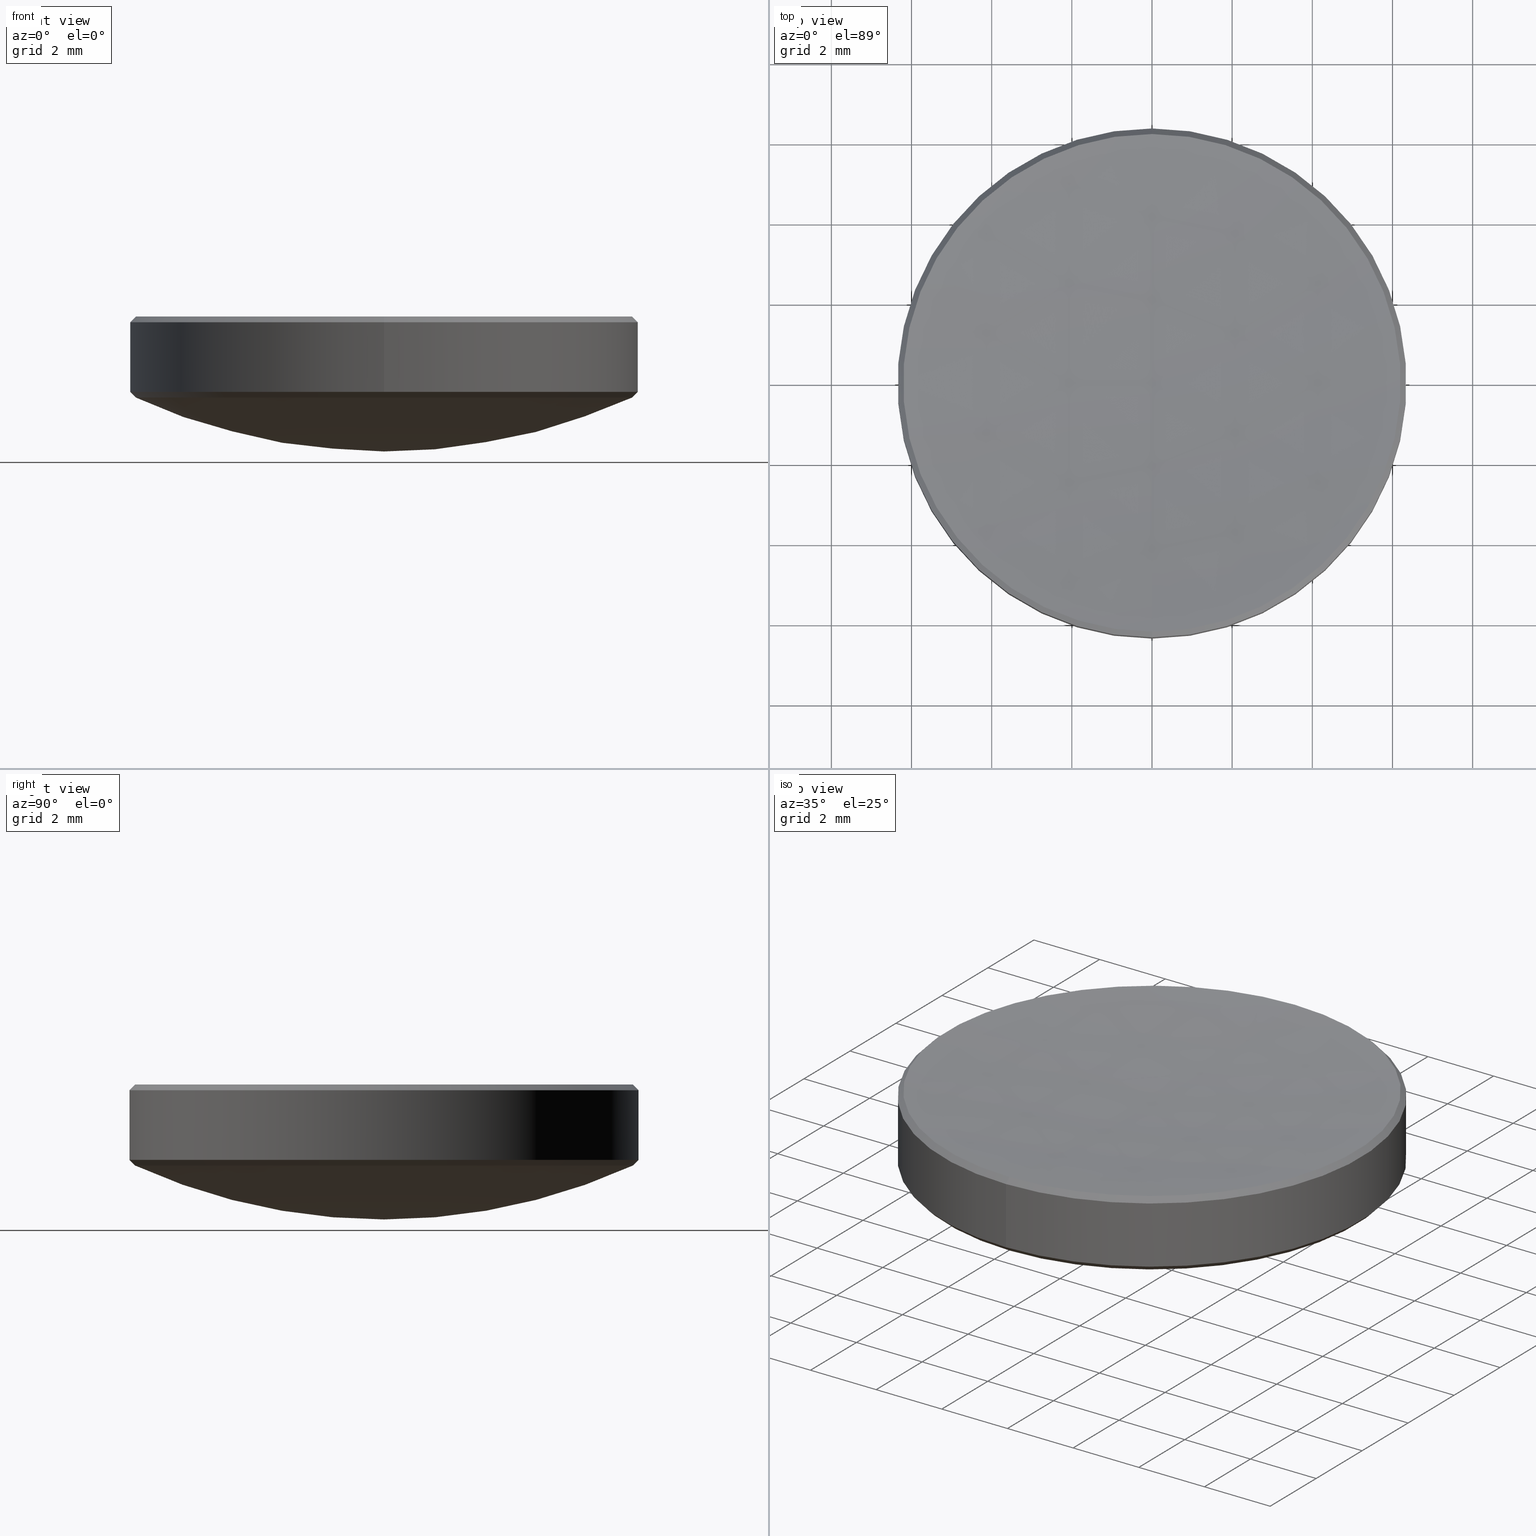
[diagram: canonical four-view strip — front | top / right | iso, engineering-drawing reading convention]
A machine part, canonical four-view strip (front | top / right | iso — engineering-drawing reading convention). The complete STEP part file that produces these views, byte-faithful:
ISO-10303-21;
HEADER;
FILE_DESCRIPTION (( 'STEP AP203' ),
    '1' );
FILE_NAME ('21984-E0W.STEP',
    '2018-06-01T18:06:17',
    ( 'admin' ),
    ( '' ),
    'SwSTEP 2.0',
    'SolidWorks 2016',
    '' );
FILE_SCHEMA (( 'CONFIG_CONTROL_DESIGN' ));
ENDSEC;

DATA;
#1 = CALENDAR_DATE ( 2018, 1, 6 ) ;
#2 = CARTESIAN_POINT ( 'NONE',  ( 0.0000000000000000000, -0.2444322300693973200, -0.01364043630470037100 ) ) ;
#3 = EDGE_CURVE ( 'NONE', #327, #126, #259, .T. ) ;
#4 = ADVANCED_FACE ( 'NONE', ( #202 ), #42, .T. ) ;
#5 = CARTESIAN_POINT ( 'NONE',  ( 0.0000000000000000000, 0.0000000000000000000, 0.05150915296063259000 ) ) ;
#6 = DIRECTION ( 'NONE',  ( 0.0000000000000000000, -1.000000000000000000, -1.835460370743176800E-016 ) ) ;
#7 = CARTESIAN_POINT ( 'NONE',  ( 0.0000000000000000000, 0.0000000000000000000, 0.0000000000000000000 ) ) ;
#8 = ORIENTED_EDGE ( 'NONE', *, *, #123, .F. ) ;
#9 = ADVANCED_FACE ( 'NONE', ( #49 ), #46, .T. ) ;
#10 = PERSON_AND_ORGANIZATION ( #213, #269 ) ;
#11 = CARTESIAN_POINT ( 'NONE',  ( 3.061616997868383000E-017, -0.2500000000000000000, 0.06036624826491244300 ) ) ;
#12 = APPROVAL ( #111, 'UNSPECIFIED' ) ;
#13 = DIRECTION ( 'NONE',  ( 8.659560562354985900E-017, -0.7071067811865516800, -0.7071067811865431300 ) ) ;
#14 = PERSON_AND_ORGANIZATION_ROLE ( 'classification_officer' ) ;
#15 = FACE_OUTER_BOUND ( 'NONE', #54, .T. ) ;
#16 = AXIS2_PLACEMENT_3D ( 'NONE', #175, #44, #191 ) ;
#17 = VERTEX_POINT ( 'NONE', #20 ) ;
#18 = COORDINATED_UNIVERSAL_TIME_OFFSET ( 5, 0, .BEHIND. ) ;
#19 = EDGE_CURVE ( 'NONE', #325, #327, #24, .T. ) ;
#20 = CARTESIAN_POINT ( 'NONE',  ( 2.993431481629367800E-017, 0.2444322300693973800, -0.01364043630470025500 ) ) ;
#21 = LOCAL_TIME ( 14, 6, 17.00000000000000000, #232 ) ;
#22 = CARTESIAN_POINT ( 'NONE',  ( 0.0000000000000000000, -2.649717242950314800E-018, 0.06593401819551519800 ) ) ;
#23 = CC_DESIGN_APPROVAL ( #12, ( #326 ) ) ;
#24 = CIRCLE ( 'NONE', #200, 0.2500000000000000000 ) ;
#25 = DIRECTION ( 'NONE',  ( -0.0000000000000000000, -1.836909530733566100E-016, 1.000000000000000000 ) ) ;
#26 = CARTESIAN_POINT ( 'NONE',  ( 0.0000000000000000000, 1.196739014448673000E-017, -0.01364043630470035400 ) ) ;
#27 = DIRECTION ( 'NONE',  ( 1.000000000000000000, 0.0000000000000000000, 0.0000000000000000000 ) ) ;
#28 = ADVANCED_FACE ( 'NONE', ( #15 ), #127, .F. ) ;
#29 = CALENDAR_DATE ( 2018, 1, 6 ) ;
#30 = CIRCLE ( 'NONE', #315, 0.2500000000000000000 ) ;
#31 = AXIS2_PLACEMENT_3D ( 'NONE', #309, #178, #176 ) ;
#32 = CARTESIAN_POINT ( 'NONE',  ( 2.993431481629368400E-017, 0.2444322300693973200, -0.01364043630470030900 ) ) ;
#33 = ADVANCED_FACE ( 'NONE', ( #190 ), #153, .T. ) ;
#34 = EDGE_LOOP ( 'NONE', ( #66, #254, #173 ) ) ;
#35 = ORIENTED_EDGE ( 'NONE', *, *, #89, .F. ) ;
#36 = APPROVAL_STATUS ( 'not_yet_approved' ) ;
#37 = EDGE_CURVE ( 'NONE', #17, #217, #183, .T. ) ;
#38 = CARTESIAN_POINT ( 'NONE',  ( 0.0000000000000000000, 0.2500000000000000000, 0.06036624826491252700 ) ) ;
#39 = ORIENTED_EDGE ( 'NONE', *, *, #37, .T. ) ;
#40 = UNCERTAINTY_MEASURE_WITH_UNIT (LENGTH_MEASURE( 1.000000000000000100E-005 ), #160, 'distance_accuracy_value', 'NONE');
#41 = CC_DESIGN_PERSON_AND_ORGANIZATION_ASSIGNMENT ( #76, #99, ( #326 ) ) ;
#42 = CONICAL_SURFACE ( 'NONE', #162, 0.2500000000000000000, 0.7853981633974545000 ) ;
#43 = CLOSED_SHELL ( 'NONE', ( #4, #33, #9, #205, #266, #28, #82, #108, #317, #148 ) ) ;
#44 = DIRECTION ( 'NONE',  ( -0.0000000000000000000, -1.836909530733566100E-016, 1.000000000000000000 ) ) ;
#45 = APPROVAL_DATE_TIME ( #247, #12 ) ;
#46 = CONICAL_SURFACE ( 'NONE', #179, 0.2444322300693973200, 0.7853981633974482800 ) ;
#47 = AXIS2_PLACEMENT_3D ( 'NONE', #305, #168, #221 ) ;
#48 = CARTESIAN_POINT ( 'NONE',  ( 3.061616997868383000E-017, 0.2500000000000000000, 0.05150915296063263100 ) ) ;
#49 = FACE_OUTER_BOUND ( 'NONE', #304, .T. ) ;
#50 = DIRECTION ( 'NONE',  ( -1.224646799147353200E-016, -1.000000000000000000, 0.0000000000000000000 ) ) ;
#51 = DATE_AND_TIME ( #29, #21 ) ;
#52 = FACE_OUTER_BOUND ( 'NONE', #34, .T. ) ;
#53 = EDGE_CURVE ( 'NONE', #212, #71, #306, .T. ) ;
#54 = EDGE_LOOP ( 'NONE', ( #301, #276, #277 ) ) ;
#55 = DIRECTION ( 'NONE',  ( -1.000000000000000000, 0.0000000000000000000, 0.0000000000000000000 ) ) ;
#56 = CARTESIAN_POINT ( 'NONE',  ( 0.0000000000000000000, 0.0000000000000000000, 0.5239500978425223300 ) ) ;
#57 = CARTESIAN_POINT ( 'NONE',  ( 0.0000000000000000000, -1.626968277904726200E-018, 0.06036624826491248500 ) ) ;
#58 = EDGE_LOOP ( 'NONE', ( #91, #281, #170 ) ) ;
#59 = CC_DESIGN_DATE_AND_TIME_ASSIGNMENT ( #234, #143, ( #326 ) ) ;
#60 = DIRECTION ( 'NONE',  ( 0.0000000000000000000, -1.000000000000000000, -1.707404996040164500E-016 ) ) ;
#61 = ORIENTED_EDGE ( 'NONE', *, *, #138, .F. ) ;
#62 = ORIENTED_EDGE ( 'NONE', *, *, #320, .F. ) ;
#63 = DIRECTION ( 'NONE',  ( -0.0000000000000000000, -1.836909530733566100E-016, 1.000000000000000000 ) ) ;
#64 = AXIS2_PLACEMENT_3D ( 'NONE', #22, #65, #250 ) ;
#65 = DIRECTION ( 'NONE',  ( -0.0000000000000000000, -1.836909530733566100E-016, 1.000000000000000000 ) ) ;
#66 = ORIENTED_EDGE ( 'NONE', *, *, #72, .F. ) ;
#67 = APPLICATION_CONTEXT ( 'configuration controlled 3d designs of mechanical parts and assemblies' ) ;
#68 = ORIENTED_EDGE ( 'NONE', *, *, #120, .F. ) ;
#69 = ORIENTED_EDGE ( 'NONE', *, *, #120, .T. ) ;
#70 = DIRECTION ( 'NONE',  ( 0.0000000000000000000, 1.000000000000000000, 1.314533001914755700E-016 ) ) ;
#71 = VERTEX_POINT ( 'NONE', #117 ) ;
#72 = EDGE_CURVE ( 'NONE', #208, #17, #155, .T. ) ;
#73 = DIRECTION ( 'NONE',  ( 0.0000000000000000000, -1.000000000000000000, -1.833611759518356000E-016 ) ) ;
#74 = DIRECTION ( 'NONE',  ( 0.0000000000000000000, -0.7071067811865475700, 0.7071067811865474600 ) ) ;
#75 = COORDINATED_UNIVERSAL_TIME_OFFSET ( 5, 0, .BEHIND. ) ;
#76 = PERSON_AND_ORGANIZATION ( #213, #269 ) ;
#77 = DIRECTION ( 'NONE',  ( -1.000000000000000000, 1.224646799147353200E-016, 2.249565377136128300E-032 ) ) ;
#78 = LOCAL_TIME ( 14, 6, 17.00000000000000000, #196 ) ;
#79 = PRODUCT_DEFINITION_FORMATION_WITH_SPECIFIED_SOURCE ( 'ANY', '', #289, .NOT_KNOWN. ) ;
#80 = LOCAL_TIME ( 14, 6, 17.00000000000000000, #75 ) ;
#81 = CARTESIAN_POINT ( 'NONE',  ( 0.0000000000000000000, 1.094464117944115000E-017, -0.008072666374097677400 ) ) ;
#82 = ADVANCED_FACE ( 'NONE', ( #52 ), #144, .T. ) ;
#83 = ORIENTED_EDGE ( 'NONE', *, *, #151, .F. ) ;
#84 = CALENDAR_DATE ( 2018, 1, 6 ) ;
#85 = AXIS2_PLACEMENT_3D ( 'NONE', #198, #194, #180 ) ;
#86 = MECHANICAL_CONTEXT ( 'NONE', #311, 'mechanical' ) ;
#87 = VECTOR ( 'NONE', #106, 39.37007874015748100 ) ;
#88 = SECURITY_CLASSIFICATION_LEVEL ( 'unclassified' ) ;
#89 = EDGE_CURVE ( 'NONE', #217, #325, #158, .T. ) ;
#90 = DIRECTION ( 'NONE',  ( 1.224646799147353200E-016, 1.000000000000000000, 0.0000000000000000000 ) ) ;
#91 = ORIENTED_EDGE ( 'NONE', *, *, #210, .F. ) ;
#92 = APPROVAL ( #36, 'UNSPECIFIED' ) ;
#93 = PERSON_AND_ORGANIZATION ( #213, #269 ) ;
#94 = VECTOR ( 'NONE', #166, 39.37007874015748100 ) ;
#95 = SPHERICAL_SURFACE ( 'NONE', #96, 0.5905511811023621500 ) ;
#96 = AXIS2_PLACEMENT_3D ( 'NONE', #56, #150, #286 ) ;
#97 = FACE_OUTER_BOUND ( 'NONE', #225, .T. ) ;
#98 = CIRCLE ( 'NONE', #116, 2.078188976377952600 ) ;
#99 = PERSON_AND_ORGANIZATION_ROLE ( 'creator' ) ;
#100 = ORIENTED_EDGE ( 'NONE', *, *, #103, .T. ) ;
#101 = CARTESIAN_POINT ( 'NONE',  ( 0.0000000000000000000, 0.0000000000000000000, 2.129698129338585000 ) ) ;
#102 = DIRECTION ( 'NONE',  ( 0.0000000000000000000, -1.000000000000000000, -1.707404996040164500E-016 ) ) ;
#103 = EDGE_CURVE ( 'NONE', #270, #126, #30, .T. ) ;
#104 = DIRECTION ( 'NONE',  ( 1.000000000000000000, 0.0000000000000000000, 0.0000000000000000000 ) ) ;
#105 = SPHERICAL_SURFACE ( 'NONE', #147, 2.078188976377952600 ) ;
#106 = DIRECTION ( 'NONE',  ( -0.0000000000000000000, -1.836909530733566100E-016, 1.000000000000000000 ) ) ;
#107 = APPROVAL_STATUS ( 'not_yet_approved' ) ;
#108 = ADVANCED_FACE ( 'NONE', ( #248 ), #181, .T. ) ;
#109 = CC_DESIGN_APPROVAL ( #92, ( #79 ) ) ;
#110 = CARTESIAN_POINT ( 'NONE',  ( 0.0000000000000000000, -0.2444322300693973200, -0.01364043630470039900 ) ) ;
#111 = APPROVAL_STATUS ( 'not_yet_approved' ) ;
#112 = PERSON_AND_ORGANIZATION ( #213, #269 ) ;
#113 = CIRCLE ( 'NONE', #64, 0.2444322300693972100 ) ;
#114 = ORIENTED_EDGE ( 'NONE', *, *, #265, .T. ) ;
#115 = DIRECTION ( 'NONE',  ( 0.0000000000000000000, -1.000000000000000000, -1.833611759518356000E-016 ) ) ;
#116 = AXIS2_PLACEMENT_3D ( 'NONE', #101, #77, #50 ) ;
#117 = CARTESIAN_POINT ( 'NONE',  ( -2.993431481629359100E-017, -0.2444322300693961800, 0.06593401819551519800 ) ) ;
#118 = CONICAL_SURFACE ( 'NONE', #47, 0.2500000000000000000, 0.7853981633974545000 ) ;
#119 = CARTESIAN_POINT ( 'NONE',  ( 0.0000000000000000000, -1.626968277904726200E-018, 0.06036624826491248500 ) ) ;
#120 = EDGE_CURVE ( 'NONE', #71, #270, #134, .T. ) ;
#121 = APPROVAL_ROLE ( '' ) ;
#122 = LINE ( 'NONE', #38, #218 ) ;
#123 = EDGE_CURVE ( 'NONE', #327, #325, #152, .T. ) ;
#124 = MANIFOLD_SOLID_BREP ( '21984-001-1-solid1', #43 ) ;
#125 = ORIENTED_EDGE ( 'NONE', *, *, #320, .T. ) ;
#126 = VERTEX_POINT ( 'NONE', #229 ) ;
#127 = SPHERICAL_SURFACE ( 'NONE', #239, 2.078188976377952600 ) ;
#128 = CC_DESIGN_PERSON_AND_ORGANIZATION_ASSIGNMENT ( #177, #235, ( #79 ) ) ;
#129 = VECTOR ( 'NONE', #13, 39.37007874015748900 ) ;
#130 = EDGE_LOOP ( 'NONE', ( #68, #186, #114, #125 ) ) ;
#131 = DIRECTION ( 'NONE',  ( -0.0000000000000000000, -1.836909530733566100E-016, 1.000000000000000000 ) ) ;
#132 = APPROVAL_DATE_TIME ( #51, #92 ) ;
#133 = CARTESIAN_POINT ( 'NONE',  ( 0.0000000000000000000, -0.2500000000000000000, -0.008072666374097724200 ) ) ;
#134 = LINE ( 'NONE', #11, #129 ) ;
#135 = AXIS2_PLACEMENT_3D ( 'NONE', #262, #288, #256 ) ;
#136 = ORIENTED_EDGE ( 'NONE', *, *, #103, .F. ) ;
#137 = DIRECTION ( 'NONE',  ( 0.0000000000000000000, -1.000000000000000000, -1.746296913827006200E-016 ) ) ;
#138 = EDGE_CURVE ( 'NONE', #17, #327, #139, .T. ) ;
#139 = LINE ( 'NONE', #32, #94 ) ;
#140 = FACE_OUTER_BOUND ( 'NONE', #130, .T. ) ;
#141 = CC_DESIGN_PERSON_AND_ORGANIZATION_ASSIGNMENT ( #112, #267, ( #79 ) ) ;
#142 = CARTESIAN_POINT ( 'NONE',  ( 0.0000000000000000000, 0.0000000000000000000, 0.05150915296063259000 ) ) ;
#143 = DATE_TIME_ROLE ( 'creation_date' ) ;
#144 = SPHERICAL_SURFACE ( 'NONE', #330, 0.5905511811023621500 ) ;
#145 = LINE ( 'NONE', #199, #87 ) ;
#146 = ORIENTED_EDGE ( 'NONE', *, *, #19, .T. ) ;
#147 = AXIS2_PLACEMENT_3D ( 'NONE', #271, #251, #70 ) ;
#148 = ADVANCED_FACE ( 'NONE', ( #140 ), #118, .T. ) ;
#149 = ORIENTED_EDGE ( 'NONE', *, *, #3, .F. ) ;
#150 = DIRECTION ( 'NONE',  ( 1.000000000000000000, 0.0000000000000000000, 0.0000000000000000000 ) ) ;
#151 = EDGE_CURVE ( 'NONE', #71, #212, #113, .T. ) ;
#152 = CIRCLE ( 'NONE', #31, 0.2500000000000000000 ) ;
#153 = CYLINDRICAL_SURFACE ( 'NONE', #275, 0.2500000000000000000 ) ;
#154 = SECURITY_CLASSIFICATION ( '', '', #88 ) ;
#155 = CIRCLE ( 'NONE', #296, 0.5905511811023621500 ) ;
#156 = AXIS2_PLACEMENT_3D ( 'NONE', #26, #211, #73 ) ;
#157 = PRODUCT_DEFINITION_SHAPE ( 'NONE', 'NONE',  #326 ) ;
#158 = LINE ( 'NONE', #110, #182 ) ;
#159 = CARTESIAN_POINT ( 'NONE',  ( 0.0000000000000000000, 0.0000000000000000000, 2.129698129338585000 ) ) ;
#160 =( CONVERSION_BASED_UNIT ( 'INCH', #195 ) LENGTH_UNIT ( ) NAMED_UNIT ( #268 ) );
#161 = CIRCLE ( 'NONE', #85, 2.078188976377952600 ) ;
#162 = AXIS2_PLACEMENT_3D ( 'NONE', #57, #215, #252 ) ;
#163 = DIRECTION ( 'NONE',  ( -0.0000000000000000000, -1.836909530733566100E-016, 1.000000000000000000 ) ) ;
#164 = DIRECTION ( 'NONE',  ( 0.0000000000000000000, 0.7071067811865520100, -0.7071067811865430200 ) ) ;
#165 = CC_DESIGN_PERSON_AND_ORGANIZATION_ASSIGNMENT ( #261, #14, ( #154 ) ) ;
#166 = DIRECTION ( 'NONE',  ( 8.659560562354931600E-017, 0.7071067811865473500, 0.7071067811865476800 ) ) ;
#167 = APPROVAL_PERSON_ORGANIZATION ( #319, #12, #204 ) ;
#168 = DIRECTION ( 'NONE',  ( 0.0000000000000000000, 1.836909530733566100E-016, -1.000000000000000000 ) ) ;
#169 = DATE_TIME_ROLE ( 'classification_date' ) ;
#170 = ORIENTED_EDGE ( 'NONE', *, *, #151, .T. ) ;
#171 =( GEOMETRIC_REPRESENTATION_CONTEXT ( 3 ) GLOBAL_UNCERTAINTY_ASSIGNED_CONTEXT ( ( #40 ) ) GLOBAL_UNIT_ASSIGNED_CONTEXT ( ( #160, #292, #258 ) ) REPRESENTATION_CONTEXT ( 'NONE', 'WORKASPACE' ) );
#172 = APPROVAL_PERSON_ORGANIZATION ( #10, #206, #193 ) ;
#173 = ORIENTED_EDGE ( 'NONE', *, *, #37, .F. ) ;
#174 = DIRECTION ( 'NONE',  ( 1.000000000000000000, -1.224646799147353200E-016, -2.249565377136128300E-032 ) ) ;
#175 = CARTESIAN_POINT ( 'NONE',  ( 0.0000000000000000000, 1.196739014448673000E-017, -0.01364043630470035400 ) ) ;
#176 = DIRECTION ( 'NONE',  ( 0.0000000000000000000, -1.000000000000000000, -1.835460370743176800E-016 ) ) ;
#177 = PERSON_AND_ORGANIZATION ( #213, #269 ) ;
#178 = DIRECTION ( 'NONE',  ( -0.0000000000000000000, -1.836909530733566100E-016, 1.000000000000000000 ) ) ;
#179 = AXIS2_PLACEMENT_3D ( 'NONE', #293, #25, #115 ) ;
#180 = DIRECTION ( 'NONE',  ( 0.0000000000000000000, 0.0000000000000000000, -1.000000000000000000 ) ) ;
#181 = CONICAL_SURFACE ( 'NONE', #16, 0.2444322300693973200, 0.7853981633974482800 ) ;
#182 = VECTOR ( 'NONE', #74, 39.37007874015748100 ) ;
#183 = CIRCLE ( 'NONE', #257, 0.2444322300693973200 ) ;
#184 = DIRECTION ( 'NONE',  ( 0.0000000000000000000, 0.0000000000000000000, 1.000000000000000000 ) ) ;
#185 = CC_DESIGN_DATE_AND_TIME_ASSIGNMENT ( #299, #169, ( #154 ) ) ;
#186 = ORIENTED_EDGE ( 'NONE', *, *, #53, .F. ) ;
#187 = COORDINATED_UNIVERSAL_TIME_OFFSET ( 5, 0, .BEHIND. ) ;
#188 = CARTESIAN_POINT ( 'NONE',  ( 0.0000000000000000000, -1.626968277904726200E-018, 0.06036624826491248500 ) ) ;
#189 = EDGE_LOOP ( 'NONE', ( #149, #284, #228, #62 ) ) ;
#190 = FACE_OUTER_BOUND ( 'NONE', #322, .T. ) ;
#191 = DIRECTION ( 'NONE',  ( 0.0000000000000000000, -1.000000000000000000, -1.833611759518356000E-016 ) ) ;
#192 = AXIS2_PLACEMENT_3D ( 'NONE', #188, #272, #60 ) ;
#193 = APPROVAL_ROLE ( '' ) ;
#194 = DIRECTION ( 'NONE',  ( 1.000000000000000000, 0.0000000000000000000, 0.0000000000000000000 ) ) ;
#195 = LENGTH_MEASURE_WITH_UNIT ( LENGTH_MEASURE( 0.02539999999999999900 ), #329 );
#196 = COORDINATED_UNIVERSAL_TIME_OFFSET ( 5, 0, .BEHIND. ) ;
#197 = PERSON_AND_ORGANIZATION_ROLE ( 'design_owner' ) ;
#198 = CARTESIAN_POINT ( 'NONE',  ( 0.0000000000000000000, 0.0000000000000000000, 2.129698129338585000 ) ) ;
#199 = CARTESIAN_POINT ( 'NONE',  ( 0.0000000000000000000, -0.2500000000000000000, 0.05150915296063254800 ) ) ;
#200 = AXIS2_PLACEMENT_3D ( 'NONE', #81, #163, #6 ) ;
#201 = CARTESIAN_POINT ( 'NONE',  ( 0.0000000000000000000, 0.2444322300693965700, 0.06593401819551524000 ) ) ;
#202 = FACE_OUTER_BOUND ( 'NONE', #321, .T. ) ;
#203 = ORIENTED_EDGE ( 'NONE', *, *, #302, .F. ) ;
#204 = APPROVAL_ROLE ( '' ) ;
#205 = ADVANCED_FACE ( 'NONE', ( #97 ), #95, .T. ) ;
#206 = APPROVAL ( #107, 'UNSPECIFIED' ) ;
#207 = CIRCLE ( 'NONE', #156, 0.2444322300693973200 ) ;
#208 = VERTEX_POINT ( 'NONE', #310 ) ;
#209 = DIRECTION ( 'NONE',  ( -0.0000000000000000000, -1.836909530733566100E-016, 1.000000000000000000 ) ) ;
#210 = EDGE_CURVE ( 'NONE', #312, #212, #161, .T. ) ;
#211 = DIRECTION ( 'NONE',  ( -0.0000000000000000000, -1.836909530733566100E-016, 1.000000000000000000 ) ) ;
#212 = VERTEX_POINT ( 'NONE', #201 ) ;
#213 = PERSON ( 'UNSPECIFIED', 'UNSPECIFIED', 'UNSPECIFIED', ('UNSPECIFIED'), ('UNSPECIFIED'), ('UNSPECIFIED') ) ;
#214 = AXIS2_PLACEMENT_3D ( 'NONE', #5, #131, #102 ) ;
#215 = DIRECTION ( 'NONE',  ( 0.0000000000000000000, 1.836909530733566100E-016, -1.000000000000000000 ) ) ;
#216 = DIRECTION ( 'NONE',  ( -0.0000000000000000000, -1.836909530733566100E-016, 1.000000000000000000 ) ) ;
#217 = VERTEX_POINT ( 'NONE', #2 ) ;
#218 = VECTOR ( 'NONE', #164, 39.37007874015748100 ) ;
#219 = APPLICATION_PROTOCOL_DEFINITION ( 'international standard', 'config_control_design', 1994, #311 ) ;
#220 = ORIENTED_EDGE ( 'NONE', *, *, #72, .T. ) ;
#221 = DIRECTION ( 'NONE',  ( 0.0000000000000000000, 1.000000000000000000, 1.707404996040164500E-016 ) ) ;
#222 = CALENDAR_DATE ( 2018, 1, 6 ) ;
#223 = AXIS2_PLACEMENT_3D ( 'NONE', #314, #274, #137 ) ;
#224 = CC_DESIGN_APPROVAL ( #206, ( #154 ) ) ;
#225 = EDGE_LOOP ( 'NONE', ( #253, #220, #203 ) ) ;
#226 = DIRECTION ( 'NONE',  ( 0.0000000000000000000, -1.000000000000000000, -1.707404996040164500E-016 ) ) ;
#227 = EDGE_CURVE ( 'NONE', #312, #71, #98, .T. ) ;
#228 = ORIENTED_EDGE ( 'NONE', *, *, #246, .T. ) ;
#229 = CARTESIAN_POINT ( 'NONE',  ( 3.061616997868383000E-017, 0.2500000000000000000, 0.06036624826491252700 ) ) ;
#230 = ORIENTED_EDGE ( 'NONE', *, *, #3, .T. ) ;
#231 = APPROVAL_PERSON_ORGANIZATION ( #233, #92, #121 ) ;
#232 = COORDINATED_UNIVERSAL_TIME_OFFSET ( 5, 0, .BEHIND. ) ;
#233 = PERSON_AND_ORGANIZATION ( #213, #269 ) ;
#234 = DATE_AND_TIME ( #237, #80 ) ;
#235 = PERSON_AND_ORGANIZATION_ROLE ( 'creator' ) ;
#236 = APPLICATION_PROTOCOL_DEFINITION ( 'international standard', 'config_control_design', 1994, #67 ) ;
#237 = CALENDAR_DATE ( 2018, 1, 6 ) ;
#238 = APPROVAL_DATE_TIME ( #242, #206 ) ;
#239 = AXIS2_PLACEMENT_3D ( 'NONE', #159, #55, #244 ) ;
#240 = CARTESIAN_POINT ( 'NONE',  ( 0.0000000000000000000, -0.2500000000000000000, 0.06036624826491244300 ) ) ;
#241 = EDGE_LOOP ( 'NONE', ( #61, #39, #297, #8 ) ) ;
#242 = DATE_AND_TIME ( #222, #249 ) ;
#243 = ORIENTED_EDGE ( 'NONE', *, *, #246, .F. ) ;
#244 = DIRECTION ( 'NONE',  ( 0.0000000000000000000, 1.000000000000000000, 1.314533001914755700E-016 ) ) ;
#245 = CC_DESIGN_SECURITY_CLASSIFICATION ( #154, ( #79 ) ) ;
#246 = EDGE_CURVE ( 'NONE', #325, #270, #145, .T. ) ;
#247 = DATE_AND_TIME ( #84, #260 ) ;
#248 = FACE_OUTER_BOUND ( 'NONE', #241, .T. ) ;
#249 = LOCAL_TIME ( 14, 6, 17.00000000000000000, #18 ) ;
#250 = DIRECTION ( 'NONE',  ( 0.0000000000000000000, -1.000000000000000000, -1.746296913827006200E-016 ) ) ;
#251 = DIRECTION ( 'NONE',  ( -1.000000000000000000, 0.0000000000000000000, 0.0000000000000000000 ) ) ;
#252 = DIRECTION ( 'NONE',  ( 0.0000000000000000000, 1.000000000000000000, 1.707404996040164500E-016 ) ) ;
#253 = ORIENTED_EDGE ( 'NONE', *, *, #283, .F. ) ;
#254 = ORIENTED_EDGE ( 'NONE', *, *, #283, .T. ) ;
#255 = CARTESIAN_POINT ( 'NONE',  ( 0.0000000000000000000, 0.0000000000000000000, 0.5239500978425223300 ) ) ;
#256 = DIRECTION ( 'NONE',  ( 0.0000000000000000000, 0.0000000000000000000, 1.000000000000000000 ) ) ;
#257 = AXIS2_PLACEMENT_3D ( 'NONE', #324, #216, #264 ) ;
#258 =( NAMED_UNIT ( * ) SI_UNIT ( $, .STERADIAN. ) SOLID_ANGLE_UNIT ( ) );
#259 = LINE ( 'NONE', #48, #300 ) ;
#260 = LOCAL_TIME ( 14, 6, 17.00000000000000000, #187 ) ;
#261 = PERSON_AND_ORGANIZATION ( #213, #269 ) ;
#262 = CARTESIAN_POINT ( 'NONE',  ( 0.0000000000000000000, 0.0000000000000000000, 0.5239500978425223300 ) ) ;
#263 = PRODUCT_RELATED_PRODUCT_CATEGORY ( 'detail', '', ( #289 ) ) ;
#264 = DIRECTION ( 'NONE',  ( 0.0000000000000000000, -1.000000000000000000, -1.833611759518356000E-016 ) ) ;
#265 = EDGE_CURVE ( 'NONE', #212, #126, #122, .T. ) ;
#266 = ADVANCED_FACE ( 'NONE', ( #294 ), #105, .F. ) ;
#267 = PERSON_AND_ORGANIZATION_ROLE ( 'design_supplier' ) ;
#268 = DIMENSIONAL_EXPONENTS ( 1.000000000000000000, 0.0000000000000000000, 0.0000000000000000000, 0.0000000000000000000, 0.0000000000000000000, 0.0000000000000000000, 0.0000000000000000000 ) ;
#269 = ORGANIZATION ( 'UNSPECIFIED', 'UNSPECIFIED', '' ) ;
#270 = VERTEX_POINT ( 'NONE', #240 ) ;
#271 = CARTESIAN_POINT ( 'NONE',  ( 0.0000000000000000000, 0.0000000000000000000, 2.129698129338585000 ) ) ;
#272 = DIRECTION ( 'NONE',  ( -0.0000000000000000000, -1.836909530733566100E-016, 1.000000000000000000 ) ) ;
#273 = CIRCLE ( 'NONE', #192, 0.2500000000000000000 ) ;
#274 = DIRECTION ( 'NONE',  ( -0.0000000000000000000, -1.836909530733566100E-016, 1.000000000000000000 ) ) ;
#275 = AXIS2_PLACEMENT_3D ( 'NONE', #142, #323, #279 ) ;
#276 = ORIENTED_EDGE ( 'NONE', *, *, #210, .T. ) ;
#277 = ORIENTED_EDGE ( 'NONE', *, *, #53, .T. ) ;
#278 = ORIENTED_EDGE ( 'NONE', *, *, #302, .T. ) ;
#279 = DIRECTION ( 'NONE',  ( 0.0000000000000000000, -1.000000000000000000, -1.707404996040164500E-016 ) ) ;
#280 = DIRECTION ( 'NONE',  ( 0.0000000000000000000, -1.000000000000000000, -2.312964634635743000E-016 ) ) ;
#281 = ORIENTED_EDGE ( 'NONE', *, *, #227, .T. ) ;
#282 = CARTESIAN_POINT ( 'NONE',  ( 0.0000000000000000000, 5.089968876346382000E-016, 0.05150915296063240300 ) ) ;
#283 = EDGE_CURVE ( 'NONE', #208, #217, #313, .T. ) ;
#284 = ORIENTED_EDGE ( 'NONE', *, *, #123, .T. ) ;
#285 = SHAPE_DEFINITION_REPRESENTATION ( #157, #308 ) ;
#286 = DIRECTION ( 'NONE',  ( 0.0000000000000000000, -1.000000000000000000, -2.312964634635743000E-016 ) ) ;
#287 = AXIS2_PLACEMENT_3D ( 'NONE', #7, #184, #27 ) ;
#288 = DIRECTION ( 'NONE',  ( -1.000000000000000000, 0.0000000000000000000, -0.0000000000000000000 ) ) ;
#289 = PRODUCT ( '21984-E0W', '21984-E0W', '', ( #86 ) ) ;
#290 = CYLINDRICAL_SURFACE ( 'NONE', #214, 0.2500000000000000000 ) ;
#291 = ORIENTED_EDGE ( 'NONE', *, *, #138, .T. ) ;
#292 =( NAMED_UNIT ( * ) PLANE_ANGLE_UNIT ( ) SI_UNIT ( $, .RADIAN. ) );
#293 = CARTESIAN_POINT ( 'NONE',  ( 0.0000000000000000000, 1.196739014448673000E-017, -0.01364043630470035400 ) ) ;
#294 = FACE_OUTER_BOUND ( 'NONE', #58, .T. ) ;
#295 = ORIENTED_EDGE ( 'NONE', *, *, #265, .F. ) ;
#296 = AXIS2_PLACEMENT_3D ( 'NONE', #318, #174, #90 ) ;
#297 = ORIENTED_EDGE ( 'NONE', *, *, #89, .T. ) ;
#298 = CARTESIAN_POINT ( 'NONE',  ( 3.061616997868382400E-017, 0.2500000000000000000, -0.008072666374097632300 ) ) ;
#299 = DATE_AND_TIME ( #1, #78 ) ;
#300 = VECTOR ( 'NONE', #63, 39.37007874015748100 ) ;
#301 = ORIENTED_EDGE ( 'NONE', *, *, #227, .F. ) ;
#302 = EDGE_CURVE ( 'NONE', #217, #17, #207, .T. ) ;
#303 = FACE_OUTER_BOUND ( 'NONE', #189, .T. ) ;
#304 = EDGE_LOOP ( 'NONE', ( #278, #291, #328, #35 ) ) ;
#305 = CARTESIAN_POINT ( 'NONE',  ( 0.0000000000000000000, -1.626968277904726200E-018, 0.06036624826491248500 ) ) ;
#306 = CIRCLE ( 'NONE', #223, 0.2444322300693972100 ) ;
#307 = CC_DESIGN_PERSON_AND_ORGANIZATION_ASSIGNMENT ( #93, #197, ( #289 ) ) ;
#308 = ADVANCED_BREP_SHAPE_REPRESENTATION ( '21984-E0W', ( #124, #287 ), #171 ) ;
#309 = CARTESIAN_POINT ( 'NONE',  ( 0.0000000000000000000, 1.094464117944115000E-017, -0.008072666374097677400 ) ) ;
#310 = CARTESIAN_POINT ( 'NONE',  ( 0.0000000000000000000, 7.231807861180451000E-017, -0.06660108325983987700 ) ) ;
#311 = APPLICATION_CONTEXT ( 'configuration controlled 3d designs of mechanical parts and assemblies' ) ;
#312 = VERTEX_POINT ( 'NONE', #282 ) ;
#313 = CIRCLE ( 'NONE', #135, 0.5905511811023621500 ) ;
#314 = CARTESIAN_POINT ( 'NONE',  ( 0.0000000000000000000, -2.649717242950314800E-018, 0.06593401819551519800 ) ) ;
#315 = AXIS2_PLACEMENT_3D ( 'NONE', #119, #209, #226 ) ;
#316 = DESIGN_CONTEXT ( 'detailed design', #67, 'design' ) ;
#317 = ADVANCED_FACE ( 'NONE', ( #303 ), #290, .T. ) ;
#318 = CARTESIAN_POINT ( 'NONE',  ( 0.0000000000000000000, 0.0000000000000000000, 0.5239500978425223300 ) ) ;
#319 = PERSON_AND_ORGANIZATION ( #213, #269 ) ;
#320 = EDGE_CURVE ( 'NONE', #126, #270, #273, .T. ) ;
#321 = EDGE_LOOP ( 'NONE', ( #83, #69, #100, #295 ) ) ;
#322 = EDGE_LOOP ( 'NONE', ( #146, #230, #136, #243 ) ) ;
#323 = DIRECTION ( 'NONE',  ( -0.0000000000000000000, -1.836909530733566100E-016, 1.000000000000000000 ) ) ;
#324 = CARTESIAN_POINT ( 'NONE',  ( 0.0000000000000000000, 1.196739014448673000E-017, -0.01364043630470035400 ) ) ;
#325 = VERTEX_POINT ( 'NONE', #133 ) ;
#326 = PRODUCT_DEFINITION ( 'UNKNOWN', '', #79, #316 ) ;
#327 = VERTEX_POINT ( 'NONE', #298 ) ;
#328 = ORIENTED_EDGE ( 'NONE', *, *, #19, .F. ) ;
#329 =( LENGTH_UNIT ( ) NAMED_UNIT ( * ) SI_UNIT ( $, .METRE. ) );
#330 = AXIS2_PLACEMENT_3D ( 'NONE', #255, #104, #280 ) ;
ENDSEC;
END-ISO-10303-21;
